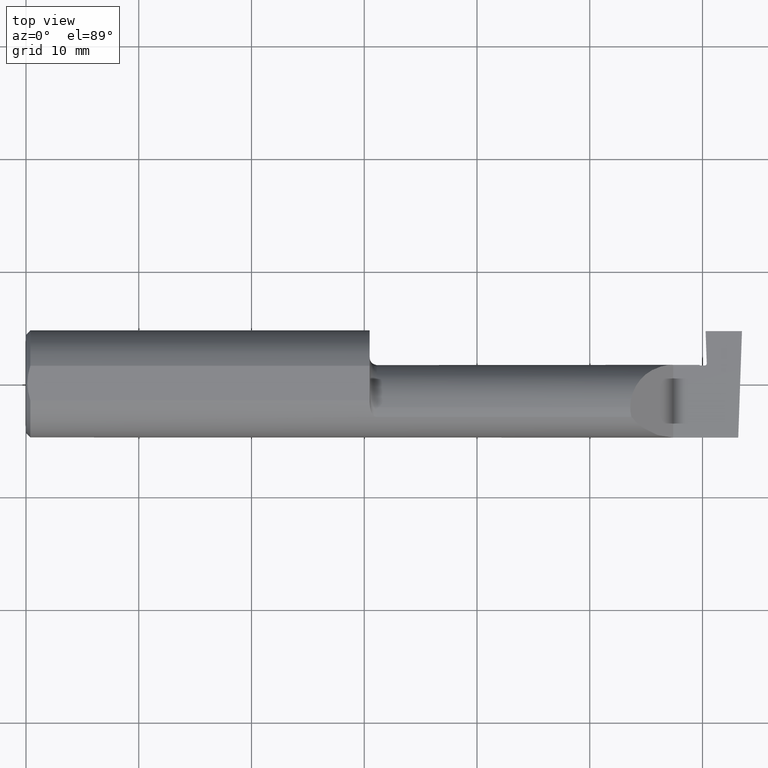
[diagram: clean part render]
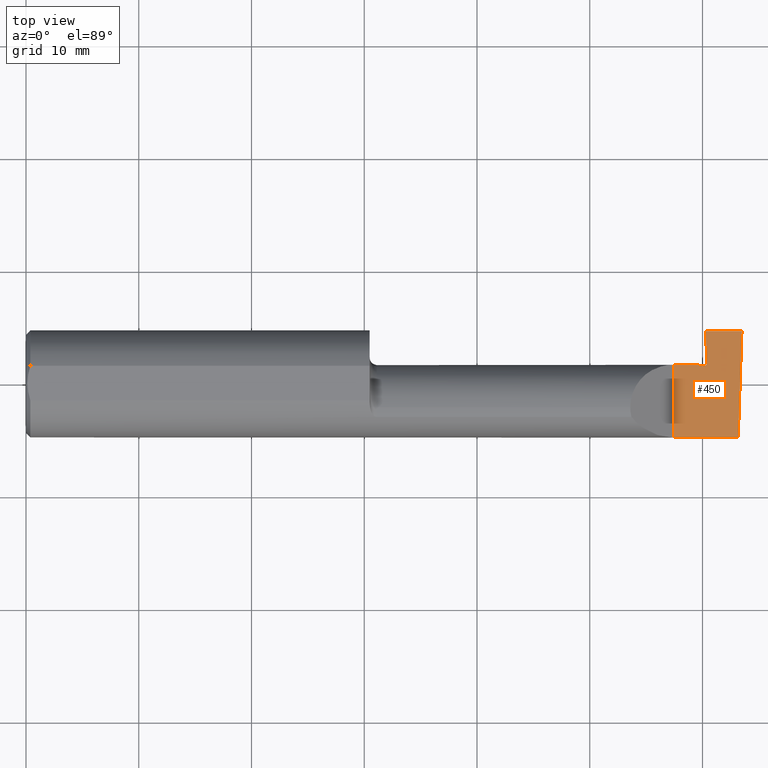
[diagram: same view with one face highlighted and labeled with its STEP entity id]
A machine part, top view. The second image highlights one B-rep face of the part: STEP entity #450.
In plain terms, the highlighted planar face has unit normal (-0, 0, -1).
Its self-contained STEP definition (entity closure, byte-faithful):
#17 = DIRECTION ( 'NONE',  ( -0.03489949670249478664, -0.9993908270190959842, 0.000000000000000000 ) ) ;
#21 = VERTEX_POINT ( 'NONE', #929 ) ;
#46 = FACE_OUTER_BOUND ( 'NONE', #585, .T. ) ;
#65 = CARTESIAN_POINT ( 'NONE',  ( 2.351000000000295298, 0.06664999999970511180, 1.435438964408816161E-17 ) ) ;
#78 = ORIENTED_EDGE ( 'NONE', *, *, #542, .T. ) ;
#105 = VERTEX_POINT ( 'NONE', #1042 ) ;
#112 =( BOUNDED_CURVE ( )  B_SPLINE_CURVE ( 3, ( #342, #1004, #514, #197 ),
 .UNSPECIFIED., .F., .F. ) 
 B_SPLINE_CURVE_WITH_KNOTS ( ( 4, 4 ),
 ( 2.602085213965217190E-18, 0.0002839584294598537003 ),
 .UNSPECIFIED. ) 
 CURVE ( )  GEOMETRIC_REPRESENTATION_ITEM ( )  RATIONAL_B_SPLINE_CURVE ( ( 1.000000000000000000, 0.7964389136393328350, 0.7964389136393328350, 1.000000000000000000 ) ) 
 REPRESENTATION_ITEM ( '' )  );
#129 = CARTESIAN_POINT ( 'NONE',  ( 2.353000000002632319, 0.06465000000023236881, -3.769192465970467587E-11 ) ) ;
#138 = DIRECTION ( 'NONE',  ( -1.000000000000000000, -0.000000000000000000, -0.000000000000000000 ) ) ;
#162 = B_SPLINE_CURVE_WITH_KNOTS ( 'NONE', 1,
 ( #948, #65 ),
 .UNSPECIFIED., .F., .F.,
 ( 2, 2 ),
 ( 0.000000000000000000, 7.184204900105083753E-05 ),
 .UNSPECIFIED. ) ;
#176 = DIRECTION ( 'NONE',  ( 1.000000000000000000, -0.000000000000000000, -0.000000000000000000 ) ) ;
#197 = CARTESIAN_POINT ( 'NONE',  ( 2.369941780146246568, 0.06464999999995414692, -5.400781430396811901E-11 ) ) ;
#212 = VERTEX_POINT ( 'NONE', #224 ) ;
#224 = CARTESIAN_POINT ( 'NONE',  ( 2.260000000000000231, 0.06664999999999998703, 2.939152317953647352E-17 ) ) ;
#235 = CARTESIAN_POINT ( 'NONE',  ( 2.300000000000000266, 0.1846500000000000363, -3.367778697655196529E-19 ) ) ;
#237 = CARTESIAN_POINT ( 'NONE',  ( 2.500000000000000000, 0.1846500000000000363, 0.000000000000000000 ) ) ;
#240 = CARTESIAN_POINT ( 'NONE',  ( 2.500000000000000000, 0.1846500000000000363, 0.000000000000000000 ) ) ;
#246 = ORIENTED_EDGE ( 'NONE', *, *, #636, .F. ) ;
#282 = DIRECTION ( 'NONE',  ( -1.224646799147353700E-16, 0.000000000000000000, -1.000000000000000000 ) ) ;
#289 = EDGE_CURVE ( 'NONE', #105, #635, #386, .T. ) ;
#306 = ORIENTED_EDGE ( 'NONE', *, *, #309, .F. ) ;
#309 = EDGE_CURVE ( 'NONE', #212, #975, #451, .T. ) ;
#336 = CARTESIAN_POINT ( 'NONE',  ( 2.376937515920359179, 0.07189429647749603913, 1.610679705285662114E-10 ) ) ;
#342 = CARTESIAN_POINT ( 'NONE',  ( 2.376937515920359179, 0.07189429647749603913, 1.610679705285662114E-10 ) ) ;
#348 = B_SPLINE_CURVE_WITH_KNOTS ( 'NONE', 1,
 ( #676, #413 ),
 .UNSPECIFIED., .F., .F.,
 ( 2, 2 ),
 ( 6.214901063768139146E-15, 0.002865740601224325834 ),
 .UNSPECIFIED. ) ;
#361 = PLANE ( 'NONE',  #766 ) ;
#386 = B_SPLINE_CURVE_WITH_KNOTS ( 'NONE', 1,
 ( #608, #129 ),
 .UNSPECIFIED., .F., .F.,
 ( 2, 2 ),
 ( 0.000000000000000000, 0.0004303212156478095074 ),
 .UNSPECIFIED. ) ;
#411 = DIRECTION ( 'NONE',  ( -0.000000000000000000, 1.000000000000000000, -0.000000000000000000 ) ) ;
#413 = CARTESIAN_POINT ( 'NONE',  ( 2.376937515920359179, 0.07189429647749603913, 1.610679705285662114E-10 ) ) ;
#427 = VERTEX_POINT ( 'NONE', #998 ) ;
#450 = ADVANCED_FACE ( 'NONE', ( #46 ), #361, .F. ) ;
#451 = LINE ( 'NONE', #768, #1031 ) ;
#461 = EDGE_CURVE ( 'NONE', #427, #710, #465, .T. ) ;
#465 = LINE ( 'NONE', #711, #522 ) ;
#508 = ORIENTED_EDGE ( 'NONE', *, *, #953, .F. ) ;
#514 = CARTESIAN_POINT ( 'NONE',  ( 2.374156691049569279, 0.06465000000020088011, 1.551238443834461377E-10 ) ) ;
#522 = VECTOR ( 'NONE', #138, 39.37007874015748143 ) ;
#542 = EDGE_CURVE ( 'NONE', #635, #975, #162, .T. ) ;
#562 = LINE ( 'NONE', #897, #724 ) ;
#573 = EDGE_CURVE ( 'NONE', #21, #870, #348, .T. ) ;
#581 = CARTESIAN_POINT ( 'NONE',  ( 2.353000000002632319, 0.06465000000023236881, -3.769192465970467587E-11 ) ) ;
#585 = EDGE_LOOP ( 'NONE', ( #893, #599, #246, #758, #957, #655, #78, #306, #508 ) ) ;
#599 = ORIENTED_EDGE ( 'NONE', *, *, #657, .F. ) ;
#608 = CARTESIAN_POINT ( 'NONE',  ( 2.369941780146246568, 0.06464999999995414692, -5.400781430396811901E-11 ) ) ;
#635 = VERTEX_POINT ( 'NONE', #581 ) ;
#636 = EDGE_CURVE ( 'NONE', #21, #989, #899, .T. ) ;
#645 = VECTOR ( 'NONE', #17, 39.37007874015748854 ) ;
#655 = ORIENTED_EDGE ( 'NONE', *, *, #289, .T. ) ;
#657 = EDGE_CURVE ( 'NONE', #989, #427, #824, .T. ) ;
#676 = CARTESIAN_POINT ( 'NONE',  ( 2.372999999986550090, 0.1846500000000000363, -3.367778697655196529E-19 ) ) ;
#693 = CARTESIAN_POINT ( 'NONE',  ( 2.500000000000000000, -0.2000000000000000111, 0.000000000000000000 ) ) ;
#710 = VERTEX_POINT ( 'NONE', #773 ) ;
#711 = CARTESIAN_POINT ( 'NONE',  ( 3.749399456654646757E-32, -0.1873499999999999888, 3.061616997868384127E-16 ) ) ;
#724 = VECTOR ( 'NONE', #411, 39.37007874015748143 ) ;
#758 = ORIENTED_EDGE ( 'NONE', *, *, #573, .T. ) ;
#766 = AXIS2_PLACEMENT_3D ( 'NONE', #693, #282, #933 ) ;
#768 = CARTESIAN_POINT ( 'NONE',  ( 1.199999999999999956, 0.06665000000000001479, 1.592040838891560081E-16 ) ) ;
#773 = CARTESIAN_POINT ( 'NONE',  ( 2.260000000000000231, -0.1873499999999999888, 2.939152317953647352E-17 ) ) ;
#824 = LINE ( 'NONE', #240, #645 ) ;
#843 = DIRECTION ( 'NONE',  ( 1.000000000000000000, 0.000000000000000000, 0.000000000000000000 ) ) ;
#870 = VERTEX_POINT ( 'NONE', #336 ) ;
#893 = ORIENTED_EDGE ( 'NONE', *, *, #461, .F. ) ;
#897 = CARTESIAN_POINT ( 'NONE',  ( 2.260000000000000231, -0.2000000000000000111, 2.939152317953647352E-17 ) ) ;
#899 = LINE ( 'NONE', #235, #963 ) ;
#929 = CARTESIAN_POINT ( 'NONE',  ( 2.372999999986550090, 0.1846500000000000363, -3.367778697655196529E-19 ) ) ;
#933 = DIRECTION ( 'NONE',  ( -1.000000000000000000, 0.000000000000000000, 1.224646799147353700E-16 ) ) ;
#948 = CARTESIAN_POINT ( 'NONE',  ( 2.353000000002632319, 0.06465000000023236881, -3.769192465970467587E-11 ) ) ;
#953 = EDGE_CURVE ( 'NONE', #710, #212, #562, .T. ) ;
#957 = ORIENTED_EDGE ( 'NONE', *, *, #1040, .T. ) ;
#963 = VECTOR ( 'NONE', #176, 39.37007874015748143 ) ;
#971 = CARTESIAN_POINT ( 'NONE',  ( 2.351000000000295298, 0.06664999999970511180, 1.435438964408816161E-17 ) ) ;
#975 = VERTEX_POINT ( 'NONE', #971 ) ;
#989 = VERTEX_POINT ( 'NONE', #237 ) ;
#998 = CARTESIAN_POINT ( 'NONE',  ( 2.487009473749072441, -0.1873499999999999055, 0.000000000000000000 ) ) ;
#1004 = CARTESIAN_POINT ( 'NONE',  ( 2.377084614195586365, 0.06768195317454607507, 1.579103989297859676E-10 ) ) ;
#1031 = VECTOR ( 'NONE', #843, 39.37007874015748143 ) ;
#1040 = EDGE_CURVE ( 'NONE', #870, #105, #112, .T. ) ;
#1042 = CARTESIAN_POINT ( 'NONE',  ( 2.369941780146246568, 0.06464999999995414692, -5.400781430396811901E-11 ) ) ;